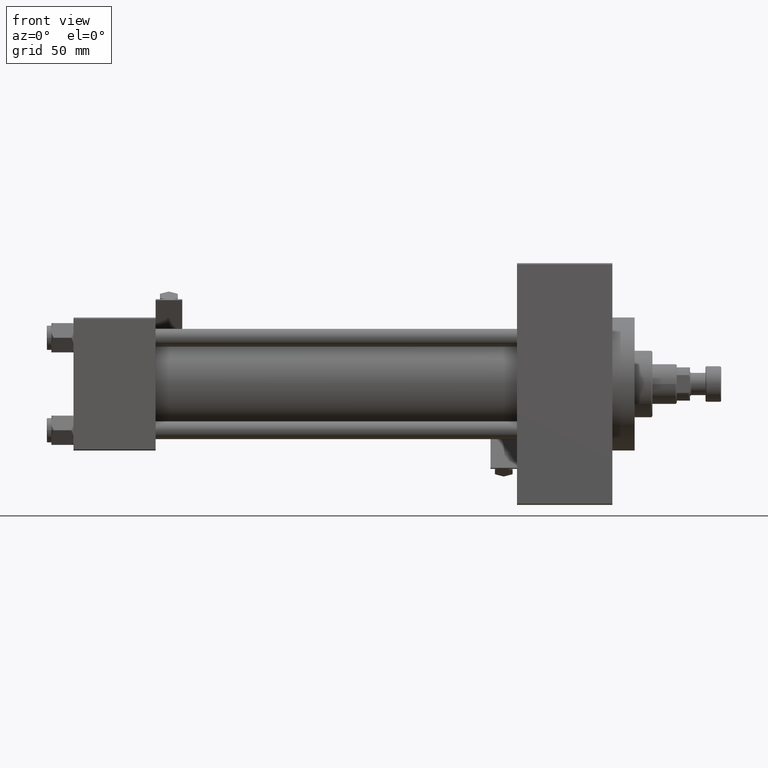
[diagram: clean part render]
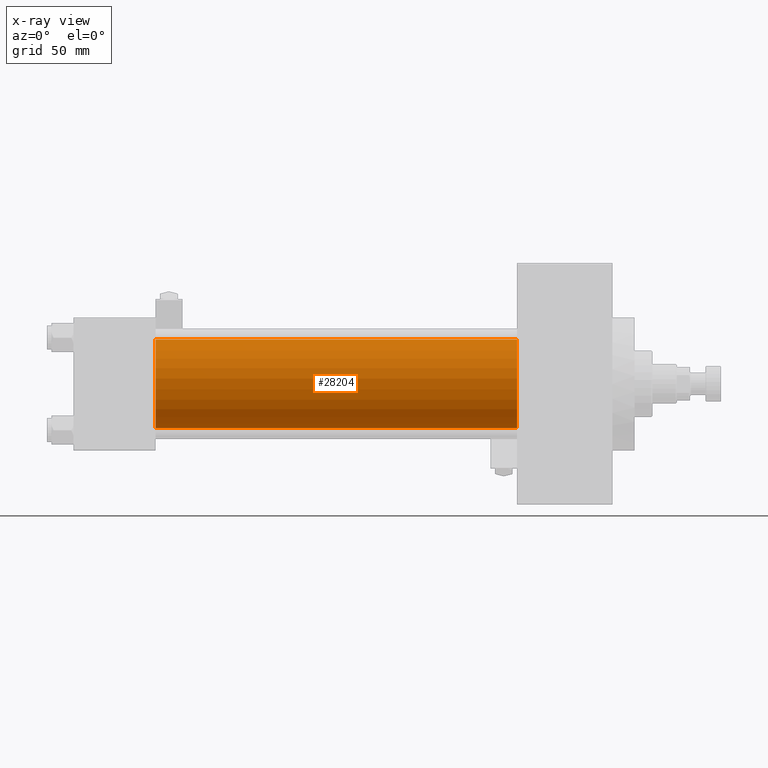
[diagram: x-ray — body ghosted, one internal face saturated and labeled with its STEP entity id]
A machine part, front view, then the same camera in x-ray: the body is ghosted and one INTERNAL B-rep face — a face not visible from any outside direction — is saturated and labeled: STEP entity #28204.
In plain terms, the highlighted cylindrical surface (partial cylindrical patch) has radius 20 mm, axis along (-1, -0, -0).
Its self-contained STEP definition (entity closure, byte-faithful):
#1202 = CYLINDRICAL_SURFACE ( 'NONE', #35457, 20.00000000000000000 ) ;
#3522 = EDGE_CURVE ( 'NONE', #38748, #38912, #34896, .T. ) ;
#3978 = DIRECTION ( 'NONE',  ( 1.000000000000000000, 0.000000000000000000, 0.000000000000000000 ) ) ;
#6380 = DIRECTION ( 'NONE',  ( 0.000000000000000000, 0.000000000000000000, -1.000000000000000000 ) ) ;
#6958 = CARTESIAN_POINT ( 'NONE',  ( 200.0000000000000000, -2.602085213965210642E-15, 20.00000000000000000 ) ) ;
#7561 = AXIS2_PLACEMENT_3D ( 'NONE', #29763, #46169, #6380 ) ;
#10831 = EDGE_CURVE ( 'NONE', #38912, #36778, #46081, .T. ) ;
#13505 = VECTOR ( 'NONE', #33960, 1000.000000000000000 ) ;
#13666 = ORIENTED_EDGE ( 'NONE', *, *, #10831, .T. ) ;
#15530 = DIRECTION ( 'NONE',  ( 0.000000000000000000, 0.000000000000000000, -1.000000000000000000 ) ) ;
#16103 = DIRECTION ( 'NONE',  ( -1.000000000000000000, -0.000000000000000000, -0.000000000000000000 ) ) ;
#17126 = FACE_OUTER_BOUND ( 'NONE', #17336, .T. ) ;
#17336 = EDGE_LOOP ( 'NONE', ( #19870, #13666, #19827, #48106 ) ) ;
#18351 = CARTESIAN_POINT ( 'NONE',  ( 200.0000000000000000, -1.527916156705042519E-16, -20.00000000000000000 ) ) ;
#19827 = ORIENTED_EDGE ( 'NONE', *, *, #38610, .F. ) ;
#19870 = ORIENTED_EDGE ( 'NONE', *, *, #3522, .T. ) ;
#21884 = LINE ( 'NONE', #6958, #13505 ) ;
#24075 = DIRECTION ( 'NONE',  ( 0.000000000000000000, 0.000000000000000000, 1.000000000000000000 ) ) ;
#26353 = VERTEX_POINT ( 'NONE', #46035 ) ;
#28204 = ADVANCED_FACE ( 'NONE', ( #17126 ), #1202, .F. ) ;
#29763 = CARTESIAN_POINT ( 'NONE',  ( 37.00000000000000000, -2.602085213965210642E-15, 0.000000000000000000 ) ) ;
#31174 = CARTESIAN_POINT ( 'NONE',  ( 200.0000000000000000, -1.527916156705042519E-16, -20.00000000000000000 ) ) ;
#33705 = CARTESIAN_POINT ( 'NONE',  ( 37.00000000000000000, -1.527916156705042519E-16, -20.00000000000000000 ) ) ;
#33960 = DIRECTION ( 'NONE',  ( -1.000000000000000000, -0.000000000000000000, -0.000000000000000000 ) ) ;
#34555 = DIRECTION ( 'NONE',  ( -1.000000000000000000, -0.000000000000000000, -0.000000000000000000 ) ) ;
#34687 = CIRCLE ( 'NONE', #7561, 20.00000000000000000 ) ;
#34896 = CIRCLE ( 'NONE', #37331, 20.00000000000000000 ) ;
#35457 = AXIS2_PLACEMENT_3D ( 'NONE', #44105, #16103, #24075 ) ;
#36778 = VERTEX_POINT ( 'NONE', #33705 ) ;
#37331 = AXIS2_PLACEMENT_3D ( 'NONE', #46611, #3978, #15530 ) ;
#38610 = EDGE_CURVE ( 'NONE', #26353, #36778, #34687, .T. ) ;
#38748 = VERTEX_POINT ( 'NONE', #40186 ) ;
#38912 = VERTEX_POINT ( 'NONE', #31174 ) ;
#40186 = CARTESIAN_POINT ( 'NONE',  ( 200.0000000000000000, -2.602085213965210642E-15, 20.00000000000000000 ) ) ;
#43147 = EDGE_CURVE ( 'NONE', #38748, #26353, #21884, .T. ) ;
#44105 = CARTESIAN_POINT ( 'NONE',  ( 200.0000000000000000, -2.602085213965210642E-15, 0.000000000000000000 ) ) ;
#46035 = CARTESIAN_POINT ( 'NONE',  ( 37.00000000000000000, -2.602085213965210642E-15, 20.00000000000000000 ) ) ;
#46081 = LINE ( 'NONE', #18351, #46407 ) ;
#46169 = DIRECTION ( 'NONE',  ( 1.000000000000000000, 0.000000000000000000, 0.000000000000000000 ) ) ;
#46407 = VECTOR ( 'NONE', #34555, 1000.000000000000000 ) ;
#46611 = CARTESIAN_POINT ( 'NONE',  ( 200.0000000000000000, -2.602085213965210642E-15, 0.000000000000000000 ) ) ;
#48106 = ORIENTED_EDGE ( 'NONE', *, *, #43147, .F. ) ;